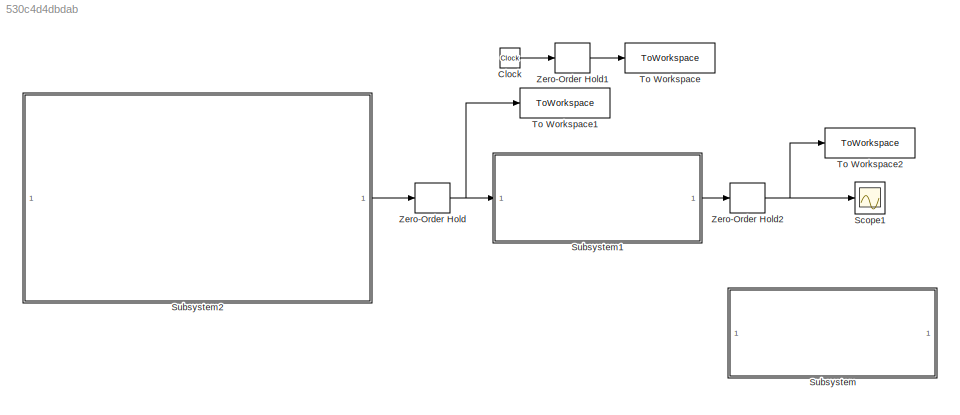
MODEL slx_530c4d4dbdab
KIND model
CONFIG AbsTol = auto
CONFIG EnableMultiTasking = off
CONFIG FixedStep = auto
CONFIG MaxStep = auto
CONFIG MinStep = auto
CONFIG RelTol = 1e-3
CONFIG SampleTimeConstraint = Unconstrained
CONFIG SolverName = VariableStepAuto
CONFIG StartTime = 0.0
CONFIG StopTime = 10.0
BLOCK [Clock] Clock
BLOCK [Scope] Scope1
  Floating = off
  NumInputPorts = 1
  ScopeSpecificationString = Simulink.scopes.TimeScopeBlockCfg('CurrentConfiguration', extmgr.ConfigurationSet(extmgr.Configuration('Core','General UI',true),extmgr.Configuration('Core','Source UI',true),extmgr.Configuration('Sources','WiredSimulink',true,'DataLoggingVariableName','ScopeData1'),extmgr.Configuration('Visuals','Time Domain',true,'SerializedDisplays',{struct('MinYLimReal','-0.01389','MaxYLimReal','0.125','YLabel...<+1389ch>
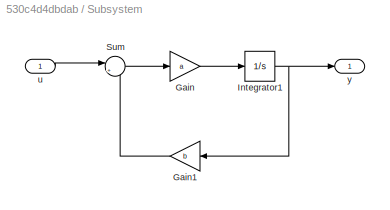
BLOCK [SubSystem] Subsystem
BLOCK [Gain] Subsystem/Gain
  Gain = a
BLOCK [Gain] Subsystem/Gain1
  Gain = b
BLOCK [Integrator] Subsystem/Integrator1
BLOCK [Sum] Subsystem/Sum
  Inputs = |+-
BLOCK [Inport] Subsystem/u
  IconDisplay = Signal name
BLOCK [Outport] Subsystem/y
  IconDisplay = Signal name
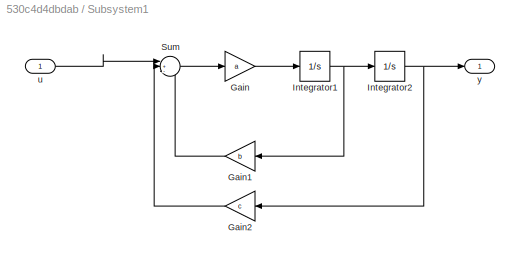
BLOCK [SubSystem] Subsystem1
BLOCK [Gain] Subsystem1/Gain
  Gain = a
BLOCK [Gain] Subsystem1/Gain1
  Gain = b
BLOCK [Gain] Subsystem1/Gain2
  Gain = c
BLOCK [Integrator] Subsystem1/Integrator1
BLOCK [Integrator] Subsystem1/Integrator2
BLOCK [Sum] Subsystem1/Sum
  Inputs = |+--
BLOCK [Inport] Subsystem1/u
  IconDisplay = Signal name
BLOCK [Outport] Subsystem1/y
  IconDisplay = Signal name
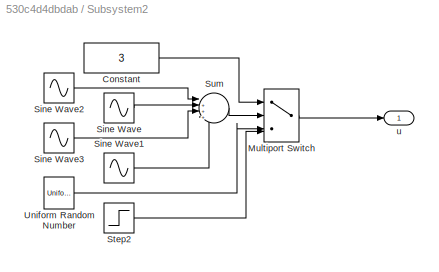
BLOCK [SubSystem] Subsystem2
BLOCK [Constant] Subsystem2/Constant
  Value = 3
BLOCK [MultiPortSwitch] Subsystem2/Multiport Switch
  InputSameDT = off
  SaturateOnIntegerOverflow = off
BLOCK [Sin] Subsystem2/Sine Wave
  Amplitude = 4
  Frequency = 8
  SampleTime = 0
BLOCK [Sin] Subsystem2/Sine Wave1
  Amplitude = 4
  Frequency = 16
  SampleTime = 0
BLOCK [Sin] Subsystem2/Sine Wave2
  Amplitude = 4
  Frequency = 4
  SampleTime = 0
BLOCK [Sin] Subsystem2/Sine Wave3
  Amplitude = 4
  Frequency = 12
  SampleTime = 0
BLOCK [Step] Subsystem2/Step2
  After = 2
  SampleTime = 0
BLOCK [Sum] Subsystem2/Sum
  Inputs = |++++
BLOCK [UniformRandomNumber] Subsystem2/Uniform Random Number
  Maximum = 4
  Minimum = -4
  SampleTime = 0.01
BLOCK [Outport] Subsystem2/u
BLOCK [ToWorkspace] To Workspace
  FixptAsFi = on
  MaxDataPoints = inf
  SampleTime = 0.01
  VariableName = t
BLOCK [ToWorkspace] To Workspace1
  FixptAsFi = on
  MaxDataPoints = inf
  SampleTime = 0.01
  VariableName = u
BLOCK [ToWorkspace] To Workspace2
  FixptAsFi = on
  MaxDataPoints = inf
  SampleTime = 0.01
  VariableName = y
BLOCK [ZeroOrderHold] Zero-Order Hold
  SampleTime = 0.01
BLOCK [ZeroOrderHold] Zero-Order Hold1
  SampleTime = 0.01
BLOCK [ZeroOrderHold] Zero-Order Hold2
  SampleTime = 0.01
LINE Clock:1 -> Zero-Order Hold1:1
LINE Subsystem/Gain1:1 -> Subsystem/Sum:2
LINE Subsystem/Gain:1 -> Subsystem/Integrator1:1
NET Subsystem/Integrator1:1 -> Subsystem/Gain1:1, Subsystem/y:1
LINE Subsystem/Sum:1 -> Subsystem/Gain:1
LINE Subsystem/u:1 -> Subsystem/Sum:1
LINE Subsystem1/Gain1:1 -> Subsystem1/Sum:3
LINE Subsystem1/Gain2:1 -> Subsystem1/Sum:2
LINE Subsystem1/Gain:1 -> Subsystem1/Integrator1:1
NET Subsystem1/Integrator1:1 -> Subsystem1/Gain1:1, Subsystem1/Integrator2:1
NET Subsystem1/Integrator2:1 -> Subsystem1/Gain2:1, Subsystem1/y:1
LINE Subsystem1/Sum:1 -> Subsystem1/Gain:1
LINE Subsystem1/u:1 -> Subsystem1/Sum:1
LINE Subsystem1:1 -> Zero-Order Hold2:1
LINE Subsystem2/Constant:1 -> Subsystem2/Multiport Switch:1
LINE Subsystem2/Multiport Switch:1 -> Subsystem2/u:1
LINE Subsystem2/Sine Wave1:1 -> Subsystem2/Sum:4
LINE Subsystem2/Sine Wave2:1 -> Subsystem2/Sum:1
LINE Subsystem2/Sine Wave3:1 -> Subsystem2/Sum:3
LINE Subsystem2/Sine Wave:1 -> Subsystem2/Sum:2
LINE Subsystem2/Step2:1 -> Subsystem2/Multiport Switch:4
LINE Subsystem2/Sum:1 -> Subsystem2/Multiport Switch:2
LINE Subsystem2/Uniform Random Number:1 -> Subsystem2/Multiport Switch:3
LINE Subsystem2:1 -> Zero-Order Hold:1
LINE Zero-Order Hold1:1 -> To Workspace:1
NET Zero-Order Hold2:1 -> Scope1:1, To Workspace2:1
NET Zero-Order Hold:1 -> Subsystem1:1, To Workspace1:1
note: NET lines group one-source signal fan-out (src -> all destinations, sorted); 1:1 wires keep LINE
